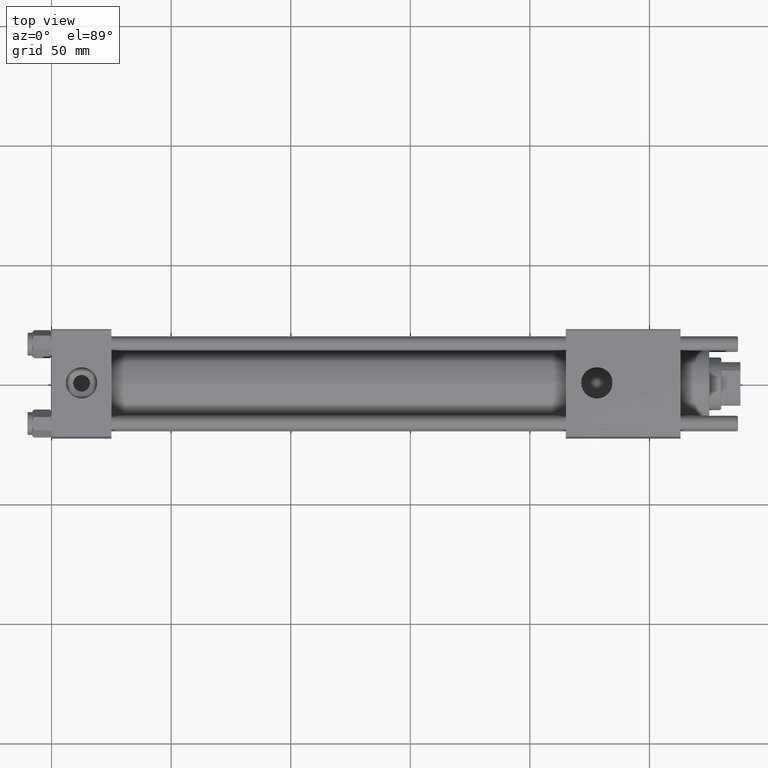
[diagram: clean part render]
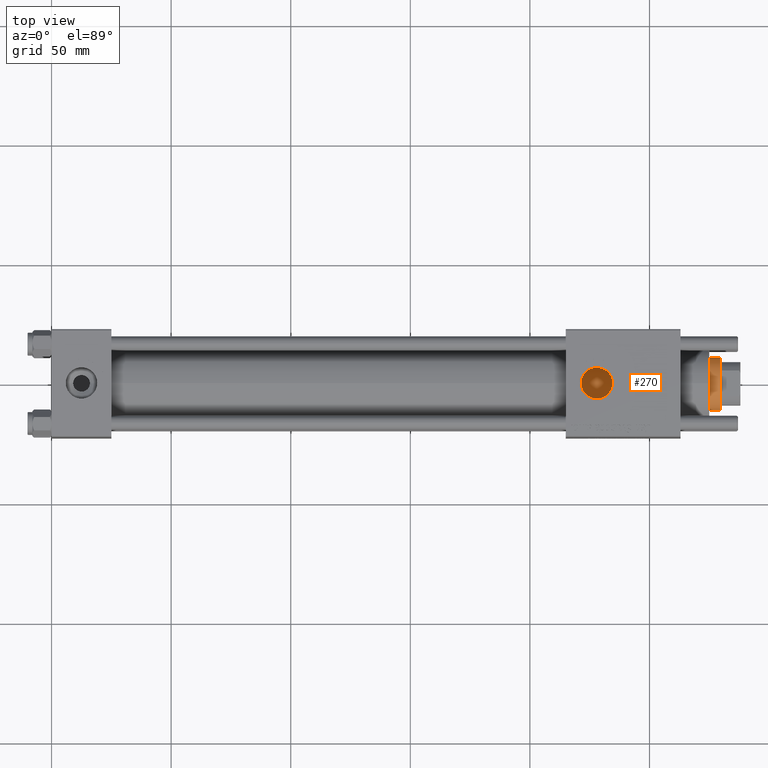
[diagram: same view with one face highlighted and labeled with its STEP entity id]
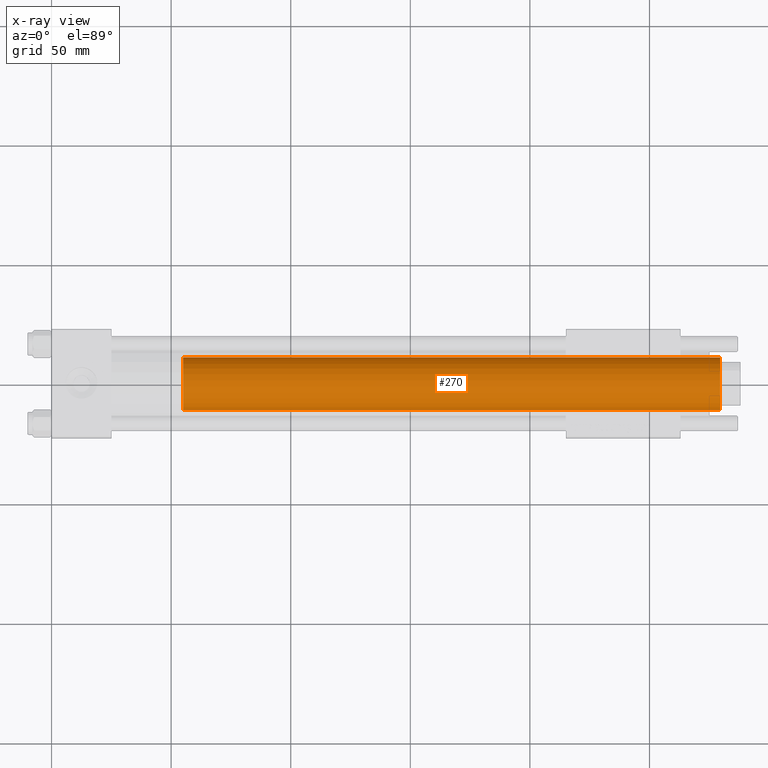
[diagram: x-ray of the same camera — body ghosted, the highlighted face saturated]
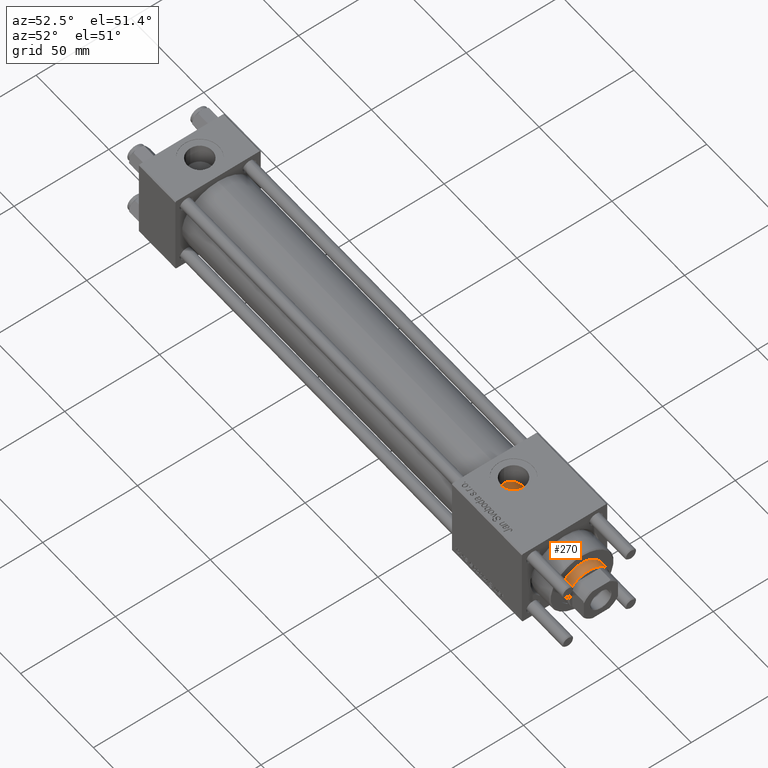
[diagram: same view with one face highlighted and labeled with its STEP entity id]
A machine part, top view. The second image highlights one B-rep face of the part: STEP entity #270.
The next image is the same camera in x-ray: the body ghosted, the highlighted face saturated — about 0% of this face is hidden behind the body in this view.
A second angle (auxiliary view) of the same face is appended — the face is thin or edge-on in the first view.
In plain terms, the highlighted cylindrical surface (edge-blend (fillet) strip) has radius 11 mm, axis along (-1, 0, 0).
Its self-contained STEP definition (entity closure, byte-faithful):
#270 = ADVANCED_FACE ( 'NONE', ( #42188 ), #55250, .T. ) ;
#656 = DIRECTION ( 'NONE',  ( -0.000000000000000000, -0.000000000000000000, -1.000000000000000000 ) ) ;
#1037 = AXIS2_PLACEMENT_3D ( 'NONE', #23619, #4571, #41751 ) ;
#1690 = LINE ( 'NONE', #51383, #55495 ) ;
#2099 = VERTEX_POINT ( 'NONE', #55696 ) ;
#2177 = ORIENTED_EDGE ( 'NONE', *, *, #25348, .T. ) ;
#4100 = CIRCLE ( 'NONE', #37371, 11.00000000000000000 ) ;
#4571 = DIRECTION ( 'NONE',  ( 0.000000000000000000, 0.000000000000000000, 1.000000000000000000 ) ) ;
#5576 = DIRECTION ( 'NONE',  ( -0.000000000000000000, -0.000000000000000000, -1.000000000000000000 ) ) ;
#6755 = CIRCLE ( 'NONE', #1037, 11.00000000000000000 ) ;
#8369 = VERTEX_POINT ( 'NONE', #17963 ) ;
#9212 = DIRECTION ( 'NONE',  ( 0.000000000000000000, 0.000000000000000000, -1.000000000000000000 ) ) ;
#10313 = ORIENTED_EDGE ( 'NONE', *, *, #53061, .T. ) ;
#10649 = CARTESIAN_POINT ( 'NONE',  ( 0.000000000000000000, 0.000000000000000000, 255.0000000000000000 ) ) ;
#10650 = DIRECTION ( 'NONE',  ( -0.000000000000000000, -0.000000000000000000, -1.000000000000000000 ) ) ;
#12639 = CARTESIAN_POINT ( 'NONE',  ( 11.00000000000000000, 1.347111479062088405E-15, 30.00000000000000000 ) ) ;
#17963 = CARTESIAN_POINT ( 'NONE',  ( 11.00000000000000000, 1.347111479062088405E-15, 254.4999999999999432 ) ) ;
#18113 = EDGE_CURVE ( 'NONE', #8369, #30787, #4100, .T. ) ;
#22596 = VECTOR ( 'NONE', #656, 1000.000000000000000 ) ;
#22917 = CARTESIAN_POINT ( 'NONE',  ( 0.000000000000000000, 0.000000000000000000, 254.4999999999999432 ) ) ;
#23619 = CARTESIAN_POINT ( 'NONE',  ( 0.000000000000000000, 0.000000000000000000, 30.00000000000000000 ) ) ;
#25064 = CARTESIAN_POINT ( 'NONE',  ( -11.00000000000000000, 0.000000000000000000, 254.4999999999999432 ) ) ;
#25348 = EDGE_CURVE ( 'NONE', #30787, #2099, #1690, .T. ) ;
#29084 = ORIENTED_EDGE ( 'NONE', *, *, #18113, .T. ) ;
#29438 = VERTEX_POINT ( 'NONE', #12639 ) ;
#30787 = VERTEX_POINT ( 'NONE', #25064 ) ;
#32204 = AXIS2_PLACEMENT_3D ( 'NONE', #10649, #5576, #38024 ) ;
#36599 = DIRECTION ( 'NONE',  ( 1.000000000000000000, 0.000000000000000000, 0.000000000000000000 ) ) ;
#37371 = AXIS2_PLACEMENT_3D ( 'NONE', #22917, #9212, #36599 ) ;
#37393 = EDGE_CURVE ( 'NONE', #8369, #29438, #54812, .T. ) ;
#38024 = DIRECTION ( 'NONE',  ( -1.000000000000000000, 0.000000000000000000, 0.000000000000000000 ) ) ;
#41449 = CARTESIAN_POINT ( 'NONE',  ( 11.00000000000000000, 1.347111479062088405E-15, 255.0000000000000000 ) ) ;
#41751 = DIRECTION ( 'NONE',  ( 1.000000000000000000, 0.000000000000000000, 0.000000000000000000 ) ) ;
#42188 = FACE_OUTER_BOUND ( 'NONE', #43001, .T. ) ;
#43001 = EDGE_LOOP ( 'NONE', ( #54916, #29084, #2177, #10313 ) ) ;
#51383 = CARTESIAN_POINT ( 'NONE',  ( -11.00000000000000000, 0.000000000000000000, 255.0000000000000000 ) ) ;
#53061 = EDGE_CURVE ( 'NONE', #2099, #29438, #6755, .T. ) ;
#54812 = LINE ( 'NONE', #41449, #22596 ) ;
#54916 = ORIENTED_EDGE ( 'NONE', *, *, #37393, .F. ) ;
#55250 = CYLINDRICAL_SURFACE ( 'NONE', #32204, 11.00000000000000000 ) ;
#55495 = VECTOR ( 'NONE', #10650, 1000.000000000000000 ) ;
#55696 = CARTESIAN_POINT ( 'NONE',  ( -11.00000000000000000, 0.000000000000000000, 30.00000000000000000 ) ) ;